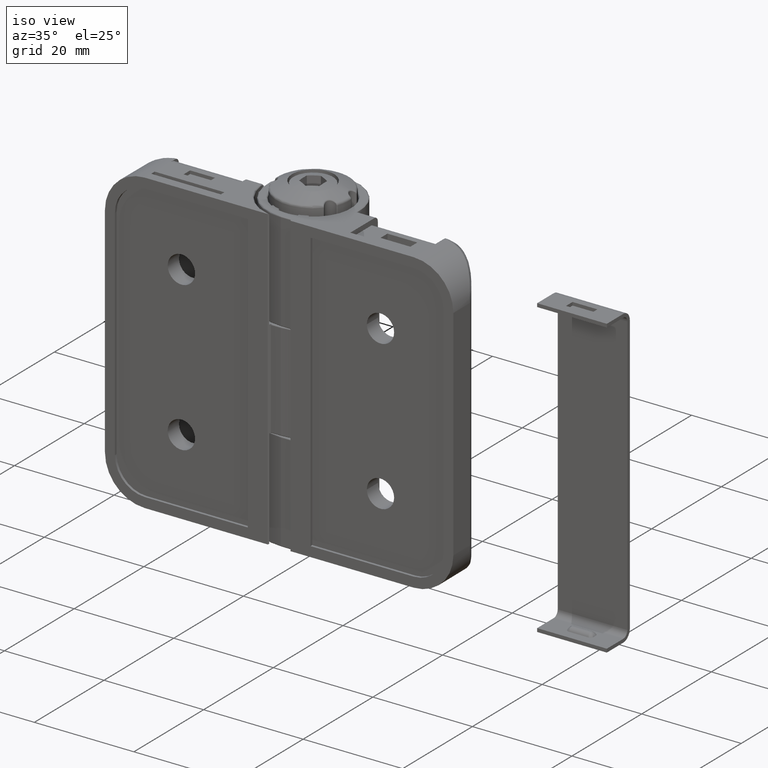
[diagram: clean part render]
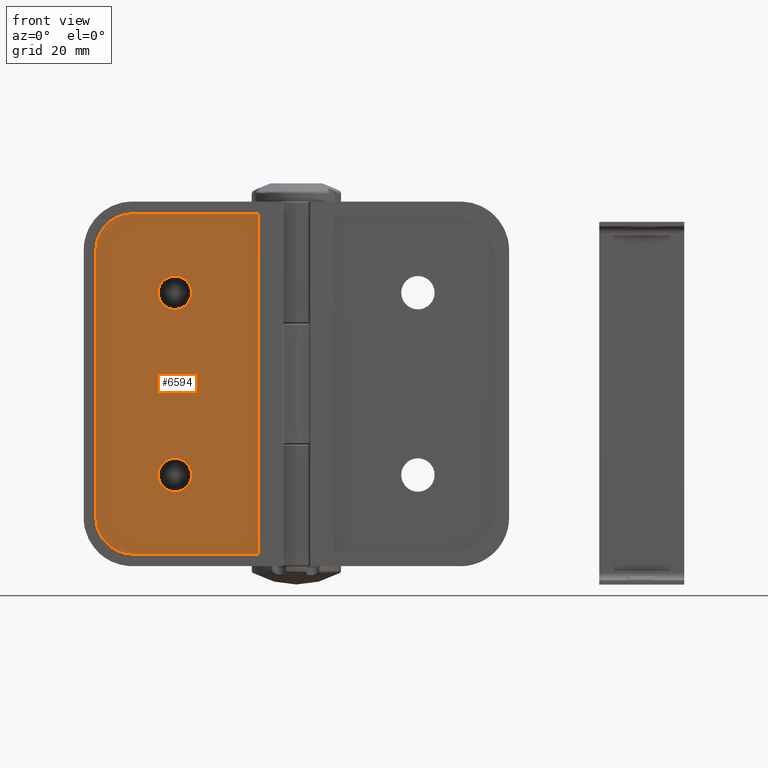
[diagram: tour spotlight — one face highlighted and labeled with its STEP entity id]
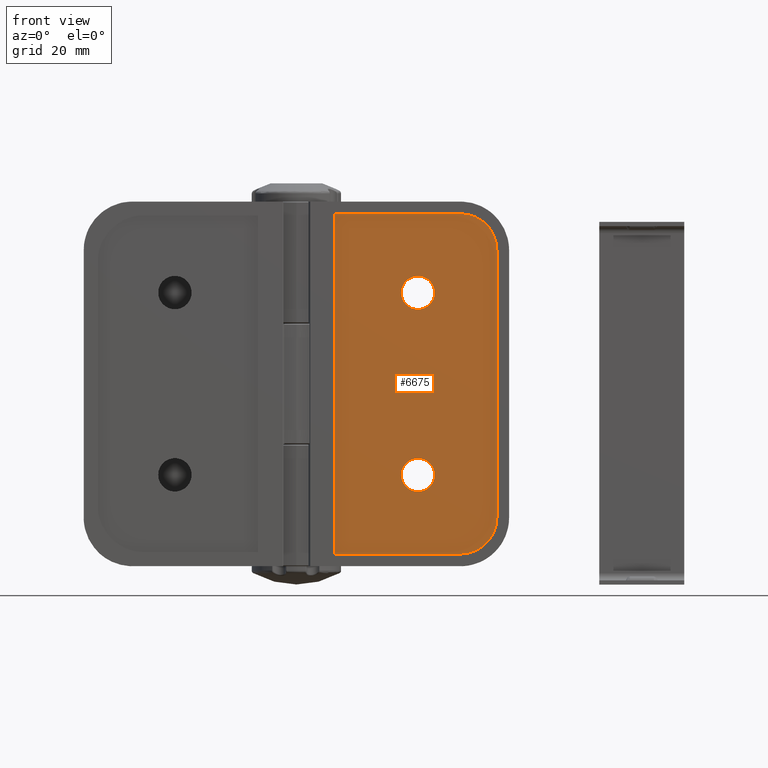
[diagram: tour spotlight — one face highlighted and labeled with its STEP entity id]
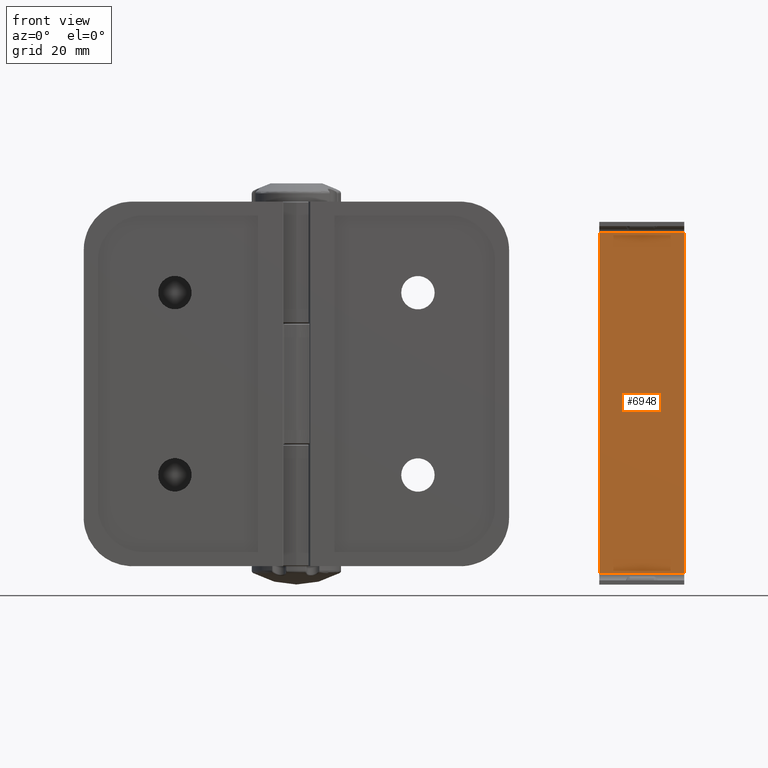
[diagram: tour spotlight — one face highlighted and labeled with its STEP entity id]
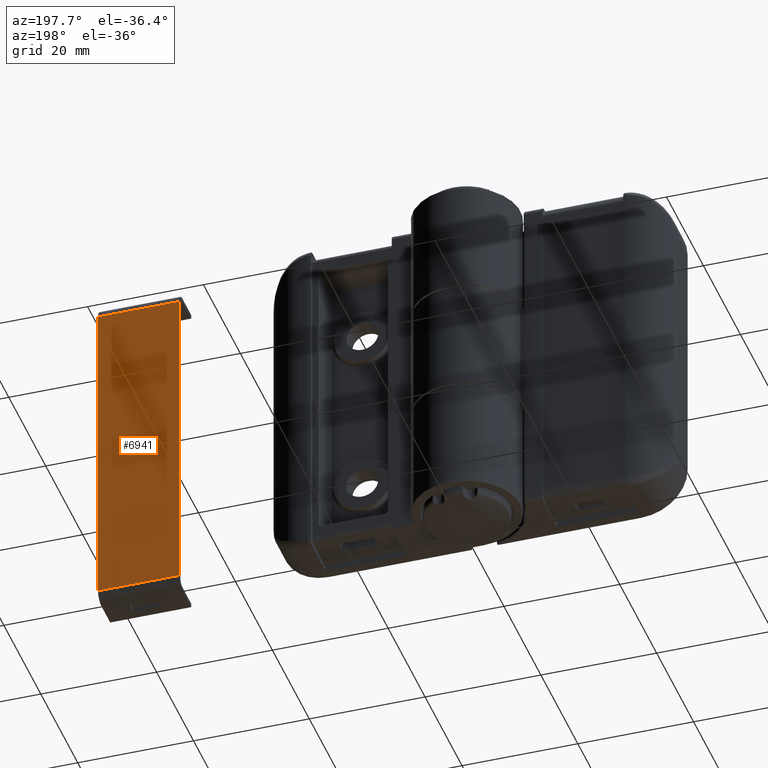
[diagram: tour spotlight — one face highlighted and labeled with its STEP entity id]
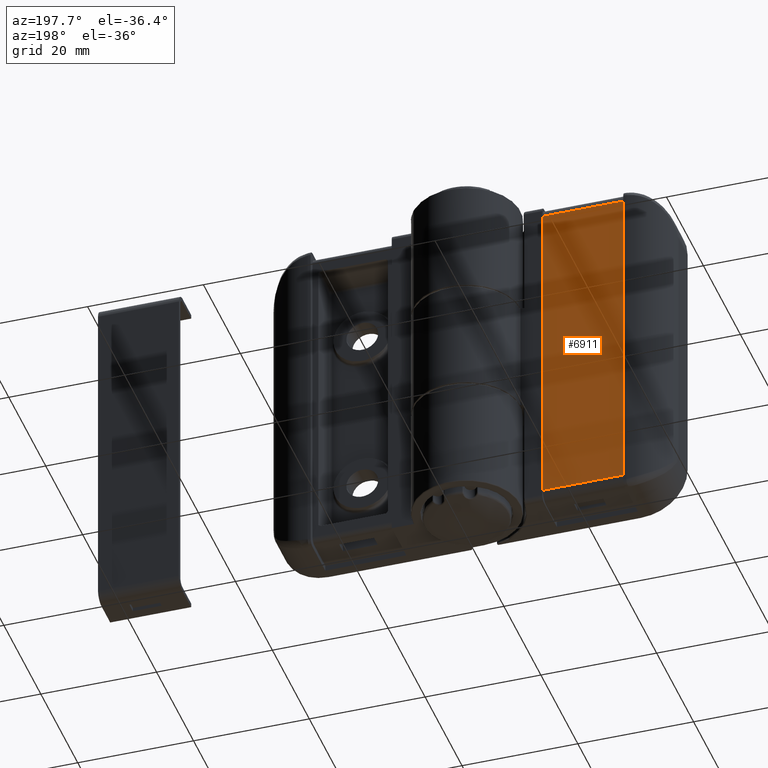
[diagram: tour spotlight — one face highlighted and labeled with its STEP entity id]
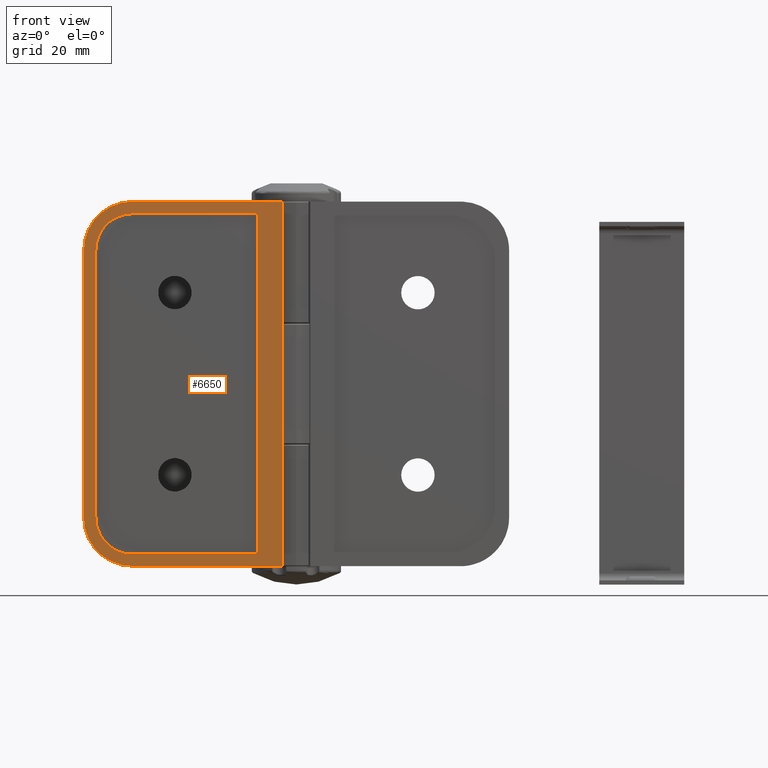
[diagram: tour spotlight — one face highlighted and labeled with its STEP entity id]
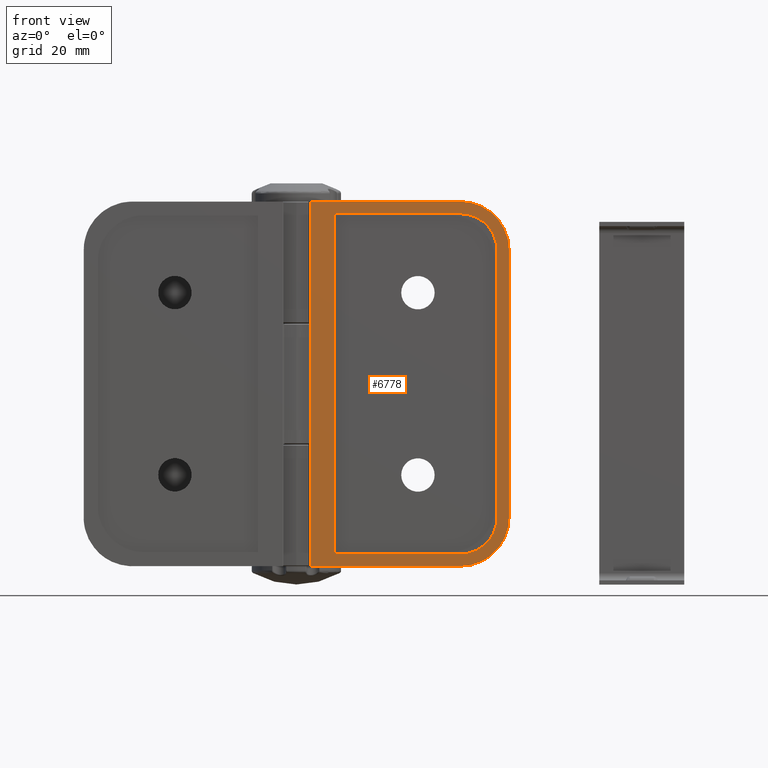
[diagram: tour spotlight — one face highlighted and labeled with its STEP entity id]
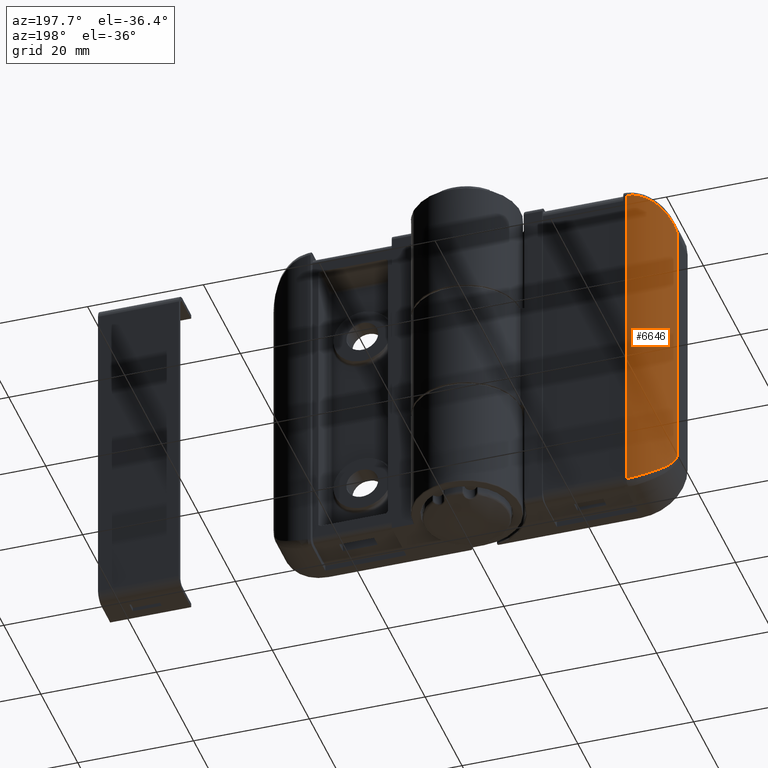
[diagram: tour spotlight — one face highlighted and labeled with its STEP entity id]
A machine part: a face-by-face anatomy tour. The part has 411 B-rep faces; the first image is the clean iso view, then the 8 largest visible faces are spotlighted one at a time (largest first), each with its STEP entity span.

Face 1 — front view, entity #6594. In plain terms, the highlighted planar face has unit normal (0, -1, 0).
Definition (entity closure, byte-faithful):
#369=FACE_BOUND('',#1961,.T.);
#370=FACE_BOUND('',#1962,.T.);
#428=PLANE('',#7033);
#579=LINE('',#9811,#995);
#580=LINE('',#9815,#996);
#581=LINE('',#9817,#997);
#582=LINE('',#9818,#998);
#995=VECTOR('',#7857,44.);
#996=VECTOR('',#7860,20.7);
#997=VECTOR('',#7861,56.);
#998=VECTOR('',#7862,20.7);
#1542=FACE_OUTER_BOUND('',#1960,.T.);
#1960=EDGE_LOOP('',(#4544,#4545,#4546,#4547,#4548,#4549));
#1961=EDGE_LOOP('',(#4550));
#1962=EDGE_LOOP('',(#4551));
#2432=CIRCLE('',#7034,6.);
#2433=CIRCLE('',#7035,6.);
#2434=CIRCLE('',#7036,2.75);
#2435=CIRCLE('',#7037,2.75);
#2831=VERTEX_POINT('',#9807);
#2832=VERTEX_POINT('',#9808);
#2833=VERTEX_POINT('',#9810);
#2834=VERTEX_POINT('',#9812);
#2835=VERTEX_POINT('',#9814);
#2836=VERTEX_POINT('',#9816);
#2837=VERTEX_POINT('',#9819);
#2838=VERTEX_POINT('',#9821);
#3506=EDGE_CURVE('',#2831,#2832,#2432,.T.);
#3507=EDGE_CURVE('',#2832,#2833,#579,.T.);
#3508=EDGE_CURVE('',#2833,#2834,#2433,.T.);
#3509=EDGE_CURVE('',#2834,#2835,#580,.T.);
#3510=EDGE_CURVE('',#2835,#2836,#581,.T.);
#3511=EDGE_CURVE('',#2836,#2831,#582,.T.);
#3512=EDGE_CURVE('',#2837,#2837,#2434,.T.);
#3513=EDGE_CURVE('',#2838,#2838,#2435,.T.);
#4544=ORIENTED_EDGE('',*,*,#3506,.T.);
#4545=ORIENTED_EDGE('',*,*,#3507,.T.);
#4546=ORIENTED_EDGE('',*,*,#3508,.T.);
#4547=ORIENTED_EDGE('',*,*,#3509,.T.);
#4548=ORIENTED_EDGE('',*,*,#3510,.T.);
#4549=ORIENTED_EDGE('',*,*,#3511,.T.);
#4550=ORIENTED_EDGE('',*,*,#3512,.F.);
#4551=ORIENTED_EDGE('',*,*,#3513,.T.);
#6594=ADVANCED_FACE('',(#1542,#369,#370),#428,.T.);
#7033=AXIS2_PLACEMENT_3D('',#9806,#7853,#7854);
#7034=AXIS2_PLACEMENT_3D('',#9809,#7855,#7856);
#7035=AXIS2_PLACEMENT_3D('',#9813,#7858,#7859);
#7036=AXIS2_PLACEMENT_3D('',#9820,#7863,#7864);
#7037=AXIS2_PLACEMENT_3D('',#9822,#7865,#7866);
#7853=DIRECTION('center_axis',(0.,-1.,0.));
#7854=DIRECTION('ref_axis',(-1.,0.,0.));
#7855=DIRECTION('center_axis',(0.,-1.,0.));
#7856=DIRECTION('ref_axis',(0.,0.,-1.));
#7857=DIRECTION('',(0.,0.,1.));
#7858=DIRECTION('center_axis',(0.,-1.,0.));
#7859=DIRECTION('ref_axis',(1.,0.,0.));
#7860=DIRECTION('',(-1.,0.,0.));
#7861=DIRECTION('',(0.,0.,-1.));
#7862=DIRECTION('',(1.,0.,0.));
#7863=DIRECTION('center_axis',(0.,-1.,0.));
#7864=DIRECTION('ref_axis',(1.,0.,0.));
#7865=DIRECTION('center_axis',(0.,1.,0.));
#7866=DIRECTION('ref_axis',(1.,0.,0.));
#9806=CARTESIAN_POINT('Origin',(0.,-9.25,0.));
#9807=CARTESIAN_POINT('',(27.,-9.25,2.));
#9808=CARTESIAN_POINT('',(33.,-9.25,8.));
#9809=CARTESIAN_POINT('Origin',(27.,-9.25,8.));
#9810=CARTESIAN_POINT('',(33.,-9.25,52.));
#9811=CARTESIAN_POINT('',(33.,-9.25,8.));
#9812=CARTESIAN_POINT('',(27.,-9.25,58.));
#9813=CARTESIAN_POINT('Origin',(27.,-9.25,52.));
#9814=CARTESIAN_POINT('',(6.3,-9.25,58.));
#9815=CARTESIAN_POINT('',(27.,-9.25,58.));
#9816=CARTESIAN_POINT('',(6.3,-9.25,2.));
#9817=CARTESIAN_POINT('',(6.3,-9.25,58.));
#9818=CARTESIAN_POINT('',(6.3,-9.25,2.));
#9819=CARTESIAN_POINT('',(17.25,-9.25,45.));
#9820=CARTESIAN_POINT('Origin',(20.,-9.25,45.));
#9821=CARTESIAN_POINT('',(17.25,-9.25,15.));
#9822=CARTESIAN_POINT('Origin',(20.,-9.25,15.));

Face 2 — front view, entity #6675. In plain terms, the highlighted planar face has unit normal (0, -1, -0).
Definition (entity closure, byte-faithful):
#385=FACE_BOUND('',#2058,.T.);
#386=FACE_BOUND('',#2059,.T.);
#467=PLANE('',#7171);
#683=LINE('',#10512,#1099);
#684=LINE('',#10516,#1100);
#685=LINE('',#10518,#1101);
#686=LINE('',#10519,#1102);
#1099=VECTOR('',#8237,44.);
#1100=VECTOR('',#8240,20.7);
#1101=VECTOR('',#8241,56.);
#1102=VECTOR('',#8242,20.7);
#1623=FACE_OUTER_BOUND('',#2057,.T.);
#2057=EDGE_LOOP('',(#4908,#4909,#4910,#4911,#4912,#4913));
#2058=EDGE_LOOP('',(#4914));
#2059=EDGE_LOOP('',(#4915));
#2492=CIRCLE('',#7172,6.);
#2493=CIRCLE('',#7173,6.);
#2494=CIRCLE('',#7174,2.75);
#2495=CIRCLE('',#7175,2.75);
#2939=VERTEX_POINT('',#10508);
#2940=VERTEX_POINT('',#10509);
#2941=VERTEX_POINT('',#10511);
#2942=VERTEX_POINT('',#10513);
#2943=VERTEX_POINT('',#10515);
#2944=VERTEX_POINT('',#10517);
#2945=VERTEX_POINT('',#10520);
#2946=VERTEX_POINT('',#10522);
#3680=EDGE_CURVE('',#2939,#2940,#2492,.T.);
#3681=EDGE_CURVE('',#2940,#2941,#683,.T.);
#3682=EDGE_CURVE('',#2941,#2942,#2493,.T.);
#3683=EDGE_CURVE('',#2942,#2943,#684,.T.);
#3684=EDGE_CURVE('',#2943,#2944,#685,.T.);
#3685=EDGE_CURVE('',#2944,#2939,#686,.T.);
#3686=EDGE_CURVE('',#2945,#2945,#2494,.T.);
#3687=EDGE_CURVE('',#2946,#2946,#2495,.T.);
#4908=ORIENTED_EDGE('',*,*,#3680,.T.);
#4909=ORIENTED_EDGE('',*,*,#3681,.T.);
#4910=ORIENTED_EDGE('',*,*,#3682,.T.);
#4911=ORIENTED_EDGE('',*,*,#3683,.T.);
#4912=ORIENTED_EDGE('',*,*,#3684,.T.);
#4913=ORIENTED_EDGE('',*,*,#3685,.T.);
#4914=ORIENTED_EDGE('',*,*,#3686,.F.);
#4915=ORIENTED_EDGE('',*,*,#3687,.T.);
#6675=ADVANCED_FACE('',(#1623,#385,#386),#467,.T.);
#7171=AXIS2_PLACEMENT_3D('',#10507,#8233,#8234);
#7172=AXIS2_PLACEMENT_3D('',#10510,#8235,#8236);
#7173=AXIS2_PLACEMENT_3D('',#10514,#8238,#8239);
#7174=AXIS2_PLACEMENT_3D('',#10521,#8243,#8244);
#7175=AXIS2_PLACEMENT_3D('',#10523,#8245,#8246);
#8233=DIRECTION('center_axis',(0.,-1.,0.));
#8234=DIRECTION('ref_axis',(-1.,0.,0.));
#8235=DIRECTION('center_axis',(0.,-1.,0.));
#8236=DIRECTION('ref_axis',(0.,0.,-1.));
#8237=DIRECTION('',(0.,0.,1.));
#8238=DIRECTION('center_axis',(0.,-1.,0.));
#8239=DIRECTION('ref_axis',(1.,0.,0.));
#8240=DIRECTION('',(-1.,0.,0.));
#8241=DIRECTION('',(0.,0.,-1.));
#8242=DIRECTION('',(1.,0.,0.));
#8243=DIRECTION('center_axis',(0.,-1.,0.));
#8244=DIRECTION('ref_axis',(1.,0.,0.));
#8245=DIRECTION('center_axis',(0.,1.,0.));
#8246=DIRECTION('ref_axis',(1.,0.,0.));
#10507=CARTESIAN_POINT('Origin',(0.,-9.25,0.));
#10508=CARTESIAN_POINT('',(27.,-9.25,2.));
#10509=CARTESIAN_POINT('',(33.,-9.25,8.));
#10510=CARTESIAN_POINT('Origin',(27.,-9.25,8.));
#10511=CARTESIAN_POINT('',(33.,-9.25,52.));
#10512=CARTESIAN_POINT('',(33.,-9.25,8.));
#10513=CARTESIAN_POINT('',(27.,-9.25,58.));
#10514=CARTESIAN_POINT('Origin',(27.,-9.25,52.));
#10515=CARTESIAN_POINT('',(6.3,-9.25,58.));
#10516=CARTESIAN_POINT('',(27.,-9.25,58.));
#10517=CARTESIAN_POINT('',(6.3,-9.25,2.));
#10518=CARTESIAN_POINT('',(6.3,-9.25,58.));
#10519=CARTESIAN_POINT('',(6.3,-9.25,2.));
#10520=CARTESIAN_POINT('',(17.25,-9.25,45.));
#10521=CARTESIAN_POINT('Origin',(20.,-9.25,45.));
#10522=CARTESIAN_POINT('',(17.25,-9.25,15.));
#10523=CARTESIAN_POINT('Origin',(20.,-9.25,15.));

Face 3 — front view, entity #6948. In plain terms, the highlighted planar face has unit normal (-0, 1, -0).
Definition (entity closure, byte-faithful):
#540=PLANE('',#7677);
#922=LINE('',#22172,#1338);
#924=LINE('',#22181,#1340);
#952=LINE('',#22478,#1368);
#953=LINE('',#22480,#1369);
#1338=VECTOR('',#9452,56.);
#1340=VECTOR('',#9460,56.);
#1368=VECTOR('',#9514,14.);
#1369=VECTOR('',#9517,14.);
#1896=FACE_OUTER_BOUND('',#2361,.T.);
#2361=EDGE_LOOP('',(#6222,#6223,#6224,#6225));
#3335=VERTEX_POINT('',#22169);
#3336=VERTEX_POINT('',#22171);
#3339=VERTEX_POINT('',#22178);
#3340=VERTEX_POINT('',#22180);
#4307=EDGE_CURVE('',#3335,#3336,#922,.T.);
#4311=EDGE_CURVE('',#3340,#3339,#924,.T.);
#4348=EDGE_CURVE('',#3336,#3339,#952,.T.);
#4349=EDGE_CURVE('',#3335,#3340,#953,.T.);
#6222=ORIENTED_EDGE('',*,*,#4307,.F.);
#6223=ORIENTED_EDGE('',*,*,#4349,.T.);
#6224=ORIENTED_EDGE('',*,*,#4311,.T.);
#6225=ORIENTED_EDGE('',*,*,#4348,.F.);
#6948=ADVANCED_FACE('',(#1896),#540,.F.);
#7677=AXIS2_PLACEMENT_3D('',#22479,#9515,#9516);
#9452=DIRECTION('',(0.,-1.,0.));
#9460=DIRECTION('',(0.,-1.,0.));
#9514=DIRECTION('',(0.,0.,-1.));
#9515=DIRECTION('center_axis',(1.,0.,0.));
#9516=DIRECTION('ref_axis',(0.,-1.,0.));
#9517=DIRECTION('',(0.,0.,-1.));
#22169=CARTESIAN_POINT('',(2.6,28.,0.5));
#22171=CARTESIAN_POINT('',(2.6,-28.,0.5));
#22172=CARTESIAN_POINT('',(2.6,14.,0.5));
#22178=CARTESIAN_POINT('',(2.6,-28.,-13.5));
#22180=CARTESIAN_POINT('',(2.6,28.,-13.5));
#22181=CARTESIAN_POINT('',(2.6,14.,-13.5));
#22478=CARTESIAN_POINT('',(2.6,-28.,0.));
#22479=CARTESIAN_POINT('Origin',(2.6,28.,0.));
#22480=CARTESIAN_POINT('',(2.6,28.,0.));

Face 4 — auxiliary view, entity #6941. In plain terms, the highlighted planar face has unit normal (0, -1, 0).
Definition (entity closure, byte-faithful):
#536=PLANE('',#7670);
#918=LINE('',#22160,#1334);
#928=LINE('',#22193,#1344);
#940=LINE('',#22455,#1356);
#941=LINE('',#22457,#1357);
#1334=VECTOR('',#9444,56.);
#1344=VECTOR('',#9468,56.);
#1356=VECTOR('',#9488,14.);
#1357=VECTOR('',#9491,14.);
#1889=FACE_OUTER_BOUND('',#2352,.T.);
#2352=EDGE_LOOP('',(#6182,#6183,#6184,#6185));
#3329=VERTEX_POINT('',#22157);
#3330=VERTEX_POINT('',#22159);
#3345=VERTEX_POINT('',#22190);
#3346=VERTEX_POINT('',#22192);
#4301=EDGE_CURVE('',#3329,#3330,#918,.T.);
#4317=EDGE_CURVE('',#3346,#3345,#928,.T.);
#4336=EDGE_CURVE('',#3330,#3345,#940,.T.);
#4337=EDGE_CURVE('',#3329,#3346,#941,.T.);
#6182=ORIENTED_EDGE('',*,*,#4301,.F.);
#6183=ORIENTED_EDGE('',*,*,#4337,.T.);
#6184=ORIENTED_EDGE('',*,*,#4317,.T.);
#6185=ORIENTED_EDGE('',*,*,#4336,.F.);
#6941=ADVANCED_FACE('',(#1889),#536,.F.);
#7670=AXIS2_PLACEMENT_3D('',#22456,#9489,#9490);
#9444=DIRECTION('',(0.,1.,0.));
#9468=DIRECTION('',(0.,1.,0.));
#9488=DIRECTION('',(0.,0.,-1.));
#9489=DIRECTION('center_axis',(-1.,0.,0.));
#9490=DIRECTION('ref_axis',(0.,1.,0.));
#9491=DIRECTION('',(0.,0.,-1.));
#22157=CARTESIAN_POINT('',(3.3,-28.,0.5));
#22159=CARTESIAN_POINT('',(3.3,28.,0.5));
#22160=CARTESIAN_POINT('',(3.3,-14.,0.5));
#22190=CARTESIAN_POINT('',(3.3,28.,-13.5));
#22192=CARTESIAN_POINT('',(3.3,-28.,-13.5));
#22193=CARTESIAN_POINT('',(3.3,-14.,-13.5));
#22455=CARTESIAN_POINT('',(3.3,28.,0.));
#22456=CARTESIAN_POINT('Origin',(3.3,-28.,0.));
#22457=CARTESIAN_POINT('',(3.3,-28.,0.));

Face 5 — auxiliary view, entity #6911. In plain terms, the highlighted planar face has unit normal (0, 1, -0).
Definition (entity closure, byte-faithful):
#516=PLANE('',#7635);
#860=LINE('',#21502,#1276);
#866=LINE('',#21519,#1282);
#880=LINE('',#21789,#1296);
#881=LINE('',#21791,#1297);
#1276=VECTOR('',#9320,56.);
#1282=VECTOR('',#9332,56.);
#1296=VECTOR('',#9358,14.);
#1297=VECTOR('',#9361,14.);
#1859=FACE_OUTER_BOUND('',#2318,.T.);
#2318=EDGE_LOOP('',(#6022,#6023,#6024,#6025));
#3277=VERTEX_POINT('',#21499);
#3278=VERTEX_POINT('',#21501);
#3285=VERTEX_POINT('',#21516);
#3286=VERTEX_POINT('',#21518);
#4225=EDGE_CURVE('',#3278,#3277,#860,.T.);
#4233=EDGE_CURVE('',#3285,#3286,#866,.T.);
#4256=EDGE_CURVE('',#3277,#3286,#880,.T.);
#4257=EDGE_CURVE('',#3278,#3285,#881,.T.);
#6022=ORIENTED_EDGE('',*,*,#4225,.T.);
#6023=ORIENTED_EDGE('',*,*,#4256,.T.);
#6024=ORIENTED_EDGE('',*,*,#4233,.F.);
#6025=ORIENTED_EDGE('',*,*,#4257,.F.);
#6911=ADVANCED_FACE('',(#1859),#516,.T.);
#7635=AXIS2_PLACEMENT_3D('',#21790,#9359,#9360);
#9320=DIRECTION('',(0.,1.,0.));
#9332=DIRECTION('',(0.,1.,0.));
#9358=DIRECTION('',(0.,0.,1.));
#9359=DIRECTION('center_axis',(1.,0.,0.));
#9360=DIRECTION('ref_axis',(0.,1.,0.));
#9361=DIRECTION('',(0.,0.,1.));
#21499=CARTESIAN_POINT('',(3.3,28.,-0.5));
#21501=CARTESIAN_POINT('',(3.3,-28.,-0.5));
#21502=CARTESIAN_POINT('',(3.3,-14.,-0.5));
#21516=CARTESIAN_POINT('',(3.3,-28.,13.5));
#21518=CARTESIAN_POINT('',(3.3,28.,13.5));
#21519=CARTESIAN_POINT('',(3.3,-14.,13.5));
#21789=CARTESIAN_POINT('',(3.3,28.,0.));
#21790=CARTESIAN_POINT('Origin',(3.3,-28.,0.));
#21791=CARTESIAN_POINT('',(3.3,-28.,0.));

Face 6 — front view, entity #6650. In plain terms, the highlighted planar face has unit normal (0, -1, 0).
Definition (entity closure, byte-faithful):
#380=FACE_BOUND('',#2028,.T.);
#446=PLANE('',#7141);
#608=LINE('',#9982,#1024);
#615=LINE('',#10006,#1031);
#618=LINE('',#10059,#1034);
#627=LINE('',#10359,#1043);
#657=LINE('',#10440,#1073);
#658=LINE('',#10442,#1074);
#659=LINE('',#10444,#1075);
#660=LINE('',#10447,#1076);
#1024=VECTOR('',#7998,60.);
#1031=VECTOR('',#8007,24.710844152953);
#1034=VECTOR('',#8028,24.710844152953);
#1043=VECTOR('',#8069,44.);
#1073=VECTOR('',#8151,20.7);
#1074=VECTOR('',#8152,56.);
#1075=VECTOR('',#8153,20.7);
#1076=VECTOR('',#8156,44.);
#1598=FACE_OUTER_BOUND('',#2027,.T.);
#2027=EDGE_LOOP('',(#4808,#4809,#4810,#4811,#4812,#4813));
#2028=EDGE_LOOP('',(#4814,#4815,#4816,#4817,#4818,#4819));
#2479=CIRCLE('',#7115,8.);
#2480=CIRCLE('',#7118,8.);
#2488=CIRCLE('',#7142,6.);
#2489=CIRCLE('',#7143,6.);
#2872=VERTEX_POINT('',#9979);
#2873=VERTEX_POINT('',#9981);
#2879=VERTEX_POINT('',#10004);
#2884=VERTEX_POINT('',#10058);
#2899=VERTEX_POINT('',#10352);
#2900=VERTEX_POINT('',#10357);
#2923=VERTEX_POINT('',#10436);
#2924=VERTEX_POINT('',#10437);
#2925=VERTEX_POINT('',#10439);
#2926=VERTEX_POINT('',#10441);
#2927=VERTEX_POINT('',#10443);
#2928=VERTEX_POINT('',#10445);
#3570=EDGE_CURVE('',#2872,#2873,#608,.T.);
#3578=EDGE_CURVE('',#2872,#2879,#615,.T.);
#3588=EDGE_CURVE('',#2873,#2884,#618,.T.);
#3609=EDGE_CURVE('',#2879,#2899,#2479,.T.);
#3612=EDGE_CURVE('',#2899,#2900,#627,.T.);
#3614=EDGE_CURVE('',#2900,#2884,#2480,.T.);
#3650=EDGE_CURVE('',#2923,#2924,#2488,.T.);
#3651=EDGE_CURVE('',#2925,#2923,#657,.T.);
#3652=EDGE_CURVE('',#2926,#2925,#658,.T.);
#3653=EDGE_CURVE('',#2927,#2926,#659,.T.);
#3654=EDGE_CURVE('',#2928,#2927,#2489,.T.);
#3655=EDGE_CURVE('',#2924,#2928,#660,.T.);
#4808=ORIENTED_EDGE('',*,*,#3614,.T.);
#4809=ORIENTED_EDGE('',*,*,#3588,.F.);
#4810=ORIENTED_EDGE('',*,*,#3570,.F.);
#4811=ORIENTED_EDGE('',*,*,#3578,.T.);
#4812=ORIENTED_EDGE('',*,*,#3609,.T.);
#4813=ORIENTED_EDGE('',*,*,#3612,.T.);
#4814=ORIENTED_EDGE('',*,*,#3650,.F.);
#4815=ORIENTED_EDGE('',*,*,#3651,.F.);
#4816=ORIENTED_EDGE('',*,*,#3652,.F.);
#4817=ORIENTED_EDGE('',*,*,#3653,.F.);
#4818=ORIENTED_EDGE('',*,*,#3654,.F.);
#4819=ORIENTED_EDGE('',*,*,#3655,.F.);
#6650=ADVANCED_FACE('',(#1598,#380),#446,.T.);
#7115=AXIS2_PLACEMENT_3D('',#10354,#8063,#8064);
#7118=AXIS2_PLACEMENT_3D('',#10362,#8073,#8074);
#7141=AXIS2_PLACEMENT_3D('',#10435,#8147,#8148);
#7142=AXIS2_PLACEMENT_3D('',#10438,#8149,#8150);
#7143=AXIS2_PLACEMENT_3D('',#10446,#8154,#8155);
#7998=DIRECTION('',(0.,0.,1.));
#8007=DIRECTION('',(1.,0.,0.));
#8028=DIRECTION('',(1.,0.,0.));
#8063=DIRECTION('center_axis',(0.,-1.,0.));
#8064=DIRECTION('ref_axis',(0.,0.,1.));
#8069=DIRECTION('',(0.,0.,1.));
#8073=DIRECTION('center_axis',(0.,-1.,0.));
#8074=DIRECTION('ref_axis',(-1.,0.,0.));
#8147=DIRECTION('center_axis',(0.,-1.,0.));
#8148=DIRECTION('ref_axis',(1.,0.,0.));
#8149=DIRECTION('center_axis',(0.,-1.,0.));
#8150=DIRECTION('ref_axis',(0.,0.,-1.));
#8151=DIRECTION('',(1.,0.,0.));
#8152=DIRECTION('',(0.,0.,-1.));
#8153=DIRECTION('',(-1.,0.,0.));
#8154=DIRECTION('center_axis',(0.,-1.,0.));
#8155=DIRECTION('ref_axis',(1.,0.,0.));
#8156=DIRECTION('',(0.,0.,1.));
#9979=CARTESIAN_POINT('',(2.289155847047,-9.75,0.));
#9981=CARTESIAN_POINT('',(2.289155847047,-9.75,60.));
#9982=CARTESIAN_POINT('',(2.289155847047,-9.75,0.));
#10004=CARTESIAN_POINT('',(27.,-9.75,0.));
#10006=CARTESIAN_POINT('',(2.289155847047,-9.75,0.));
#10058=CARTESIAN_POINT('',(27.,-9.75,60.));
#10059=CARTESIAN_POINT('',(2.289155847047,-9.75,60.));
#10352=CARTESIAN_POINT('',(35.,-9.75,8.));
#10354=CARTESIAN_POINT('Origin',(27.,-9.75,8.));
#10357=CARTESIAN_POINT('',(35.,-9.75,52.));
#10359=CARTESIAN_POINT('',(35.,-9.75,0.));
#10362=CARTESIAN_POINT('Origin',(27.,-9.75,52.));
#10435=CARTESIAN_POINT('Origin',(2.289155847047,-9.75,0.));
#10436=CARTESIAN_POINT('',(27.,-9.75,2.));
#10437=CARTESIAN_POINT('',(33.,-9.75,8.));
#10438=CARTESIAN_POINT('Origin',(27.,-9.75,8.));
#10439=CARTESIAN_POINT('',(6.3,-9.75,2.));
#10440=CARTESIAN_POINT('',(6.3,-9.75,2.));
#10441=CARTESIAN_POINT('',(6.3,-9.75,58.));
#10442=CARTESIAN_POINT('',(6.3,-9.75,58.));
#10443=CARTESIAN_POINT('',(27.,-9.75,58.));
#10444=CARTESIAN_POINT('',(27.,-9.75,58.));
#10445=CARTESIAN_POINT('',(33.,-9.75,52.));
#10446=CARTESIAN_POINT('Origin',(27.,-9.75,52.));
#10447=CARTESIAN_POINT('',(33.,-9.75,8.));

Face 7 — front view, entity #6778. In plain terms, the highlighted planar face has unit normal (0, -1, -0).
Definition (entity closure, byte-faithful):
#400=FACE_BOUND('',#2176,.T.);
#500=PLANE('',#7388);
#720=LINE('',#10815,#1136);
#729=LINE('',#10997,#1145);
#749=LINE('',#11368,#1165);
#807=LINE('',#11523,#1223);
#808=LINE('',#11525,#1224);
#809=LINE('',#11527,#1225);
#810=LINE('',#11529,#1226);
#811=LINE('',#11532,#1227);
#1136=VECTOR('',#8438,24.710844152953);
#1145=VECTOR('',#8515,24.710844152953);
#1165=VECTOR('',#8633,44.);
#1223=VECTOR('',#8793,60.);
#1224=VECTOR('',#8794,20.7);
#1225=VECTOR('',#8795,56.);
#1226=VECTOR('',#8796,20.7);
#1227=VECTOR('',#8799,44.);
#1726=FACE_OUTER_BOUND('',#2175,.T.);
#2175=EDGE_LOOP('',(#5392,#5393,#5394,#5395,#5396,#5397));
#2176=EDGE_LOOP('',(#5398,#5399,#5400,#5401,#5402,#5403));
#2590=CIRCLE('',#7336,8.);
#2591=CIRCLE('',#7339,8.);
#2603=CIRCLE('',#7387,6.);
#2604=CIRCLE('',#7389,6.);
#2997=VERTEX_POINT('',#10801);
#3003=VERTEX_POINT('',#10813);
#3029=VERTEX_POINT('',#10994);
#3030=VERTEX_POINT('',#10996);
#3068=VERTEX_POINT('',#11361);
#3069=VERTEX_POINT('',#11366);
#3106=VERTEX_POINT('',#11517);
#3107=VERTEX_POINT('',#11518);
#3108=VERTEX_POINT('',#11524);
#3109=VERTEX_POINT('',#11526);
#3110=VERTEX_POINT('',#11528);
#3111=VERTEX_POINT('',#11530);
#3774=EDGE_CURVE('',#2997,#3003,#720,.T.);
#3812=EDGE_CURVE('',#3029,#3030,#729,.T.);
#3867=EDGE_CURVE('',#3003,#3068,#2590,.T.);
#3870=EDGE_CURVE('',#3068,#3069,#749,.T.);
#3872=EDGE_CURVE('',#3069,#3030,#2591,.T.);
#3939=EDGE_CURVE('',#3106,#3107,#2603,.T.);
#3942=EDGE_CURVE('',#2997,#3029,#807,.T.);
#3943=EDGE_CURVE('',#3108,#3106,#808,.T.);
#3944=EDGE_CURVE('',#3109,#3108,#809,.T.);
#3945=EDGE_CURVE('',#3110,#3109,#810,.T.);
#3946=EDGE_CURVE('',#3111,#3110,#2604,.T.);
#3947=EDGE_CURVE('',#3107,#3111,#811,.T.);
#5392=ORIENTED_EDGE('',*,*,#3872,.T.);
#5393=ORIENTED_EDGE('',*,*,#3812,.F.);
#5394=ORIENTED_EDGE('',*,*,#3942,.F.);
#5395=ORIENTED_EDGE('',*,*,#3774,.T.);
#5396=ORIENTED_EDGE('',*,*,#3867,.T.);
#5397=ORIENTED_EDGE('',*,*,#3870,.T.);
#5398=ORIENTED_EDGE('',*,*,#3939,.F.);
#5399=ORIENTED_EDGE('',*,*,#3943,.F.);
#5400=ORIENTED_EDGE('',*,*,#3944,.F.);
#5401=ORIENTED_EDGE('',*,*,#3945,.F.);
#5402=ORIENTED_EDGE('',*,*,#3946,.F.);
#5403=ORIENTED_EDGE('',*,*,#3947,.F.);
#6778=ADVANCED_FACE('',(#1726,#400),#500,.T.);
#7336=AXIS2_PLACEMENT_3D('',#11363,#8627,#8628);
#7339=AXIS2_PLACEMENT_3D('',#11371,#8637,#8638);
#7387=AXIS2_PLACEMENT_3D('',#11519,#8787,#8788);
#7388=AXIS2_PLACEMENT_3D('',#11522,#8791,#8792);
#7389=AXIS2_PLACEMENT_3D('',#11531,#8797,#8798);
#8438=DIRECTION('',(1.,0.,0.));
#8515=DIRECTION('',(1.,0.,0.));
#8627=DIRECTION('center_axis',(0.,-1.,0.));
#8628=DIRECTION('ref_axis',(0.,0.,1.));
#8633=DIRECTION('',(0.,0.,1.));
#8637=DIRECTION('center_axis',(0.,-1.,0.));
#8638=DIRECTION('ref_axis',(-1.,0.,0.));
#8787=DIRECTION('center_axis',(0.,-1.,0.));
#8788=DIRECTION('ref_axis',(0.,0.,-1.));
#8791=DIRECTION('center_axis',(0.,-1.,0.));
#8792=DIRECTION('ref_axis',(1.,0.,0.));
#8793=DIRECTION('',(0.,0.,1.));
#8794=DIRECTION('',(1.,0.,0.));
#8795=DIRECTION('',(0.,0.,-1.));
#8796=DIRECTION('',(-1.,0.,0.));
#8797=DIRECTION('center_axis',(0.,-1.,0.));
#8798=DIRECTION('ref_axis',(1.,0.,0.));
#8799=DIRECTION('',(0.,0.,1.));
#10801=CARTESIAN_POINT('',(2.289155847047,-9.75,0.));
#10813=CARTESIAN_POINT('',(27.,-9.75,0.));
#10815=CARTESIAN_POINT('',(2.289155847047,-9.75,0.));
#10994=CARTESIAN_POINT('',(2.289155847047,-9.75,60.));
#10996=CARTESIAN_POINT('',(27.,-9.75,60.));
#10997=CARTESIAN_POINT('',(2.289155847047,-9.75,60.));
#11361=CARTESIAN_POINT('',(35.,-9.75,8.));
#11363=CARTESIAN_POINT('Origin',(27.,-9.75,8.));
#11366=CARTESIAN_POINT('',(35.,-9.75,52.));
#11368=CARTESIAN_POINT('',(35.,-9.75,0.));
#11371=CARTESIAN_POINT('Origin',(27.,-9.75,52.));
#11517=CARTESIAN_POINT('',(27.,-9.75,2.));
#11518=CARTESIAN_POINT('',(33.,-9.75,8.));
#11519=CARTESIAN_POINT('Origin',(27.,-9.75,8.));
#11522=CARTESIAN_POINT('Origin',(2.289155847047,-9.75,0.));
#11523=CARTESIAN_POINT('',(2.289155847047,-9.75,0.));
#11524=CARTESIAN_POINT('',(6.3,-9.75,2.));
#11525=CARTESIAN_POINT('',(6.3,-9.75,2.));
#11526=CARTESIAN_POINT('',(6.3,-9.75,58.));
#11527=CARTESIAN_POINT('',(6.3,-9.75,58.));
#11528=CARTESIAN_POINT('',(27.,-9.75,58.));
#11529=CARTESIAN_POINT('',(27.,-9.75,58.));
#11530=CARTESIAN_POINT('',(33.,-9.75,52.));
#11531=CARTESIAN_POINT('Origin',(27.,-9.75,52.));
#11532=CARTESIAN_POINT('',(33.,-9.75,8.));

Face 8 — auxiliary view, entity #6646. In plain terms, the highlighted cylindrical surface (partial cylindrical patch) has radius 8.2067 mm, axis along (0, 0, -1).
Definition (entity closure, byte-faithful):
#137=B_SPLINE_CURVE_WITH_KNOTS('',3,(#10122,#10123,#10124,#10125,#10126,
#10127,#10128,#10129,#10130,#10131,#10132,#10133,#10134,#10135,#10136,#10137,
#10138,#10139,#10140,#10141,#10142,#10143,#10144,#10145,#10146,#10147,#10148,
#10149,#10150,#10151,#10152,#10153,#10154,#10155,#10156,#10157,#10158,#10159,
#10160,#10161,#10162,#10163,#10164,#10165,#10166,#10167,#10168,#10169,#10170,
#10171,#10172,#10173,#10174,#10175,#10176,#10177,#10178,#10179,#10180,#10181,
#10182,#10183,#10184,#10185,#10186,#10187,#10188,#10189,#10190,#10191,#10192,
#10193,#10194,#10195,#10196,#10197,#10198,#10199,#10200,#10201,#10202,#10203,
#10204,#10205,#10206,#10207,#10208,#10209,#10210,#10211,#10212),
 .UNSPECIFIED.,.F.,.F.,(4,3,3,3,3,3,3,3,3,3,3,3,3,3,3,3,3,3,3,3,3,3,3,3,
3,3,3,3,3,3,4),(-1.14173111206282,-1.11330373129397,-1.08217876433006,-1.04451351395039,
-0.999041757056984,-0.978626667482416,-0.93726834694707,-0.899029842358226,
-0.862620490617998,-0.827804407223391,-0.815522222902013,-0.761636320577675,
-0.708717568412238,-0.656647020095335,-0.605615523554023,-0.555115523124617,
-0.505267275827859,-0.489313333741208,-0.437501361161214,-0.386362703177627,
-0.33613076755958,-0.326208889160806,-0.28035641520673,-0.234771887770221,
-0.18953184623371,-0.163104444580403,-0.122328333435302,-0.083141771677633,
-0.0440561393206215,-0.00506649378909395,-2.59440227042344E-16),
 .UNSPECIFIED.);
#139=B_SPLINE_CURVE_WITH_KNOTS('',3,(#10276,#10277,#10278,#10279,#10280,
#10281,#10282,#10283,#10284,#10285,#10286,#10287,#10288,#10289,#10290,#10291,
#10292,#10293,#10294,#10295,#10296,#10297,#10298,#10299,#10300,#10301,#10302,
#10303,#10304,#10305,#10306,#10307,#10308,#10309,#10310,#10311,#10312,#10313,
#10314,#10315,#10316,#10317,#10318,#10319,#10320,#10321,#10322,#10323,#10324,
#10325,#10326,#10327,#10328,#10329,#10330,#10331,#10332,#10333,#10334,#10335),
 .UNSPECIFIED.,.F.,.F.,(4,2,2,2,2,2,2,2,2,2,2,2,2,2,2,2,2,2,2,2,2,2,2,2,
2,2,2,2,2,4),(-1.14174286005062,-1.10096632933453,-1.06147403862083,-1.02005538790354,
-0.978636737186243,-0.934594413704287,-0.890348952044073,-0.845713922942886,
-0.815530614321869,-0.765150547480629,-0.714067955860167,-0.662258143447152,
-0.609326565137182,-0.555717047480582,-0.5011118625327,-0.489318368593121,
-0.445993473931161,-0.401904593271988,-0.356226448012159,-0.309345995547383,
-0.260088602897673,-0.244659184296561,-0.211760473365531,-0.175887525017774,
-0.163106122864374,-0.115452881136542,-0.0772739099208151,-0.0446435519013156,
-0.0159099152355453,0.),.UNSPECIFIED.);
#622=LINE('',#10226,#1038);
#645=LINE('',#10413,#1061);
#1038=VECTOR('',#8048,44.);
#1061=VECTOR('',#8127,57.964240043769);
#1430=CYLINDRICAL_SURFACE('',#7137,8.20673076923076);
#1594=FACE_OUTER_BOUND('',#2022,.T.);
#2022=EDGE_LOOP('',(#4772,#4773,#4774,#4775));
#2890=VERTEX_POINT('',#10071);
#2892=VERTEX_POINT('',#10120);
#2894=VERTEX_POINT('',#10224);
#2896=VERTEX_POINT('',#10274);
#3597=EDGE_CURVE('',#2892,#2890,#137,.T.);
#3600=EDGE_CURVE('',#2894,#2892,#622,.T.);
#3603=EDGE_CURVE('',#2896,#2894,#139,.T.);
#3638=EDGE_CURVE('',#2890,#2896,#645,.T.);
#4772=ORIENTED_EDGE('',*,*,#3603,.F.);
#4773=ORIENTED_EDGE('',*,*,#3638,.F.);
#4774=ORIENTED_EDGE('',*,*,#3597,.F.);
#4775=ORIENTED_EDGE('',*,*,#3600,.F.);
#6646=ADVANCED_FACE('',(#1594),#1430,.T.);
#7137=AXIS2_PLACEMENT_3D('',#10414,#8128,#8129);
#8048=DIRECTION('',(0.,0.,1.));
#8127=DIRECTION('',(0.,0.,-1.));
#8128=DIRECTION('center_axis',(0.,0.,1.));
#8129=DIRECTION('ref_axis',(0.,-1.,0.));
#10071=CARTESIAN_POINT('',(27.5,0.,58.9821200218845));
#10120=CARTESIAN_POINT('',(34.9019346230821,-4.66246868040917,52.));
#10122=CARTESIAN_POINT('Ctrl Pts',(34.9019346230821,-4.6624686804092,52.));
#10123=CARTESIAN_POINT('Ctrl Pts',(34.9019346230821,-4.6624686804092,52.0947579358961));
#10124=CARTESIAN_POINT('Ctrl Pts',(34.8995685888247,-4.65751616650692,52.1891969755497));
#10125=CARTESIAN_POINT('Ctrl Pts',(34.8950273371373,-4.64807925473388,52.2831533346703));
#10126=CARTESIAN_POINT('Ctrl Pts',(34.8900551481799,-4.6377468372113,52.3860255829951));
#10127=CARTESIAN_POINT('Ctrl Pts',(34.8824745918179,-4.62203879232327,52.4883192754406));
#10128=CARTESIAN_POINT('Ctrl Pts',(34.8724789438264,-4.60159774235425,52.5898195033345));
#10129=CARTESIAN_POINT('Ctrl Pts',(34.8603829122147,-4.57686141842499,52.7126479549003));
#10130=CARTESIAN_POINT('Ctrl Pts',(34.8447489428386,-4.54519416321168,52.8343144123669));
#10131=CARTESIAN_POINT('Ctrl Pts',(34.8258538712367,-4.50777213524678,52.9544376487057));
#10132=CARTESIAN_POINT('Ctrl Pts',(34.8030426037235,-4.46259401108923,53.0994576484399));
#10133=CARTESIAN_POINT('Ctrl Pts',(34.7754723658207,-4.40903028814893,53.2422284123717));
#10134=CARTESIAN_POINT('Ctrl Pts',(34.7436020596133,-4.3491850312511,53.3820794727126));
#10135=CARTESIAN_POINT('Ctrl Pts',(34.7292935041396,-4.32231678679232,53.4448672803324));
#10136=CARTESIAN_POINT('Ctrl Pts',(34.7141185069485,-4.29418260057364,53.5070665776992));
#10137=CARTESIAN_POINT('Ctrl Pts',(34.6981228402033,-4.26497259603157,53.5686166955253));
#10138=CARTESIAN_POINT('Ctrl Pts',(34.6657176964488,-4.20579691981045,53.6933092418275));
#10139=CARTESIAN_POINT('Ctrl Pts',(34.6299465452657,-4.14221189437787,53.8153373388922));
#10140=CARTESIAN_POINT('Ctrl Pts',(34.5908807179053,-4.07516441213602,53.9349805291));
#10141=CARTESIAN_POINT('Ctrl Pts',(34.5547617749829,-4.01317457734124,54.0455985768971));
#10142=CARTESIAN_POINT('Ctrl Pts',(34.5158257069499,-3.94822566172041,54.1541779499559));
#10143=CARTESIAN_POINT('Ctrl Pts',(34.474168482527,-3.88106274036327,54.2609393959179));
#10144=CARTESIAN_POINT('Ctrl Pts',(34.434503946666,-3.81711258190684,54.3625938690759));
#10145=CARTESIAN_POINT('Ctrl Pts',(34.3923720142235,-3.75115569212552,54.4626001558572));
#10146=CARTESIAN_POINT('Ctrl Pts',(34.3479004512693,-3.68382359263018,54.5611488738286));
#10147=CARTESIAN_POINT('Ctrl Pts',(34.3053749579413,-3.61943793677205,54.6553851131278));
#10148=CARTESIAN_POINT('Ctrl Pts',(34.2607100468184,-3.55379514847514,54.7482885658281));
#10149=CARTESIAN_POINT('Ctrl Pts',(34.2140623072846,-3.48743026464975,54.8400260882832));
#10150=CARTESIAN_POINT('Ctrl Pts',(34.1976062306882,-3.464018506171,54.8723886359945));
#10151=CARTESIAN_POINT('Ctrl Pts',(34.1809038183577,-3.44051669872593,54.9046060856946));
#10152=CARTESIAN_POINT('Ctrl Pts',(34.163963374446,-3.41694767782868,54.9366857587413));
#10153=CARTESIAN_POINT('Ctrl Pts',(34.0896401855024,-3.31354278463401,55.0774296267017));
#10154=CARTESIAN_POINT('Ctrl Pts',(34.0107784182984,-3.20890405984774,55.2155206079129));
#10155=CARTESIAN_POINT('Ctrl Pts',(33.9271728339755,-3.10360630662492,55.350896232404));
#10156=CARTESIAN_POINT('Ctrl Pts',(33.8450678119644,-3.00019844917017,55.4838421201533));
#10157=CARTESIAN_POINT('Ctrl Pts',(33.7583873488854,-2.89615531090216,55.614169326307));
#10158=CARTESIAN_POINT('Ctrl Pts',(33.6669790726782,-2.79204711865726,55.7418189372666));
#10159=CARTESIAN_POINT('Ctrl Pts',(33.5770359264768,-2.68960761597349,55.8674225269794));
#10160=CARTESIAN_POINT('Ctrl Pts',(33.4825150065847,-2.58710546966753,55.9904336654869));
#10161=CARTESIAN_POINT('Ctrl Pts',(33.3833172885207,-2.48510446185695,56.1107960369235));
#10162=CARTESIAN_POINT('Ctrl Pts',(33.2860990304091,-2.38513885278333,56.2287566142597));
#10163=CARTESIAN_POINT('Ctrl Pts',(33.1843885943294,-2.28565497215988,56.3441730701794));
#10164=CARTESIAN_POINT('Ctrl Pts',(33.0781408200651,-2.18719798751404,56.456992346501));
#10165=CARTESIAN_POINT('Ctrl Pts',(32.9729996227728,-2.08976643829682,56.5686366032607));
#10166=CARTESIAN_POINT('Ctrl Pts',(32.8634149473071,-1.99334089502866,56.6777374993018));
#10167=CARTESIAN_POINT('Ctrl Pts',(32.7493930692695,-1.89845823842298,56.784243640679));
#10168=CARTESIAN_POINT('Ctrl Pts',(32.6368427578768,-1.80480013762226,56.8893752135275));
#10169=CARTESIAN_POINT('Ctrl Pts',(32.5199689621396,-1.71264574584794,56.9919785816748));
#10170=CARTESIAN_POINT('Ctrl Pts',(32.3988284292594,-1.62251403986055,57.0920042716916));
#10171=CARTESIAN_POINT('Ctrl Pts',(32.3600573760986,-1.59366736830291,57.1240175149297));
#10172=CARTESIAN_POINT('Ctrl Pts',(32.3208496689339,-1.56502788086293,57.1557667203679));
#10173=CARTESIAN_POINT('Ctrl Pts',(32.2812083017188,-1.53661254732389,57.1872502640141));
#10174=CARTESIAN_POINT('Ctrl Pts',(32.1524691211435,-1.44433099871479,57.2894961222012));
#10175=CARTESIAN_POINT('Ctrl Pts',(32.0190664230787,-1.35434864520717,57.3889400120328));
#10176=CARTESIAN_POINT('Ctrl Pts',(31.8809671526828,-1.26716617728747,57.4851698599416));
#10177=CARTESIAN_POINT('Ctrl Pts',(31.7446625303167,-1.18111667584787,57.580149167522));
#10178=CARTESIAN_POINT('Ctrl Pts',(31.6037823297987,-1.0977949510789,57.6719974300712));
#10179=CARTESIAN_POINT('Ctrl Pts',(31.4583363284554,-1.01771112608961,57.7603184174418));
#10180=CARTESIAN_POINT('Ctrl Pts',(31.3154691813018,-0.939047240498405,
57.8470734150553));
#10181=CARTESIAN_POINT('Ctrl Pts',(31.1681964845291,-0.863507687797648,
57.9304251087557));
#10182=CARTESIAN_POINT('Ctrl Pts',(31.0165715134777,-0.791600648374052,
58.0099979454697));
#10183=CARTESIAN_POINT('Ctrl Pts',(30.9866223485394,-0.777397474787398,
58.0257152774818));
#10184=CARTESIAN_POINT('Ctrl Pts',(30.9565035268628,-0.763336094475545,
58.0412851786022));
#10185=CARTESIAN_POINT('Ctrl Pts',(30.9262156787119,-0.749420527488911,
58.0567047547452));
#10186=CARTESIAN_POINT('Ctrl Pts',(30.786244927948,-0.685111820289911,58.1279640148432));
#10187=CARTESIAN_POINT('Ctrl Pts',(30.6426650951011,-0.623920901021486,
58.1960128019168));
#10188=CARTESIAN_POINT('Ctrl Pts',(30.4956989621743,-0.566297689446172,
58.260541018203));
#10189=CARTESIAN_POINT('Ctrl Pts',(30.34959165016,-0.509011208641113,58.3246921531816));
#10190=CARTESIAN_POINT('Ctrl Pts',(30.2001376067988,-0.455251234605164,
58.3853637334573));
#10191=CARTESIAN_POINT('Ctrl Pts',(30.0476026569679,-0.405439169703844,
58.4422510170187));
#10192=CARTESIAN_POINT('Ctrl Pts',(29.8962204258866,-0.356003538539437,
58.4987083988529));
#10193=CARTESIAN_POINT('Ctrl Pts',(29.7418038401126,-0.310456714567653,
58.5514384662138));
#10194=CARTESIAN_POINT('Ctrl Pts',(29.5846570307928,-0.269184864947426,
58.6001433665959));
#10195=CARTESIAN_POINT('Ctrl Pts',(29.4928582236436,-0.245075520441003,
58.6285947985832));
#10196=CARTESIAN_POINT('Ctrl Pts',(29.4001285674979,-0.222424468579926,
58.6556726745736));
#10197=CARTESIAN_POINT('Ctrl Pts',(29.3065354178016,-0.201303878498003,
58.6813176022085));
#10198=CARTESIAN_POINT('Ctrl Pts',(29.162126038306,-0.168715902580861,58.720886396495));
#10199=CARTESIAN_POINT('Ctrl Pts',(29.0156382737073,-0.139770211571636,
58.7570437432722));
#10200=CARTESIAN_POINT('Ctrl Pts',(28.8674656971074,-0.114730553840665,
58.7896291393234));
#10201=CARTESIAN_POINT('Ctrl Pts',(28.7250692384785,-0.0906670012724972,
58.8209442794605));
#10202=CARTESIAN_POINT('Ctrl Pts',(28.5811172586548,-0.0702108215011085,
58.8489605396484));
#10203=CARTESIAN_POINT('Ctrl Pts',(28.435983293961,-0.053549476504291,58.8735354269406));
#10204=CARTESIAN_POINT('Ctrl Pts',(28.2912231381296,-0.0369310446769183,
58.8980470188445));
#10205=CARTESIAN_POINT('Ctrl Pts',(28.1452874688539,-0.0240880916544362,
58.9191349346304));
#10206=CARTESIAN_POINT('Ctrl Pts',(27.9985651357171,-0.0151581043460536,
58.9366577166409));
#10207=CARTESIAN_POINT('Ctrl Pts',(27.8522031245229,-0.00625004737579431,
58.9541374660555));
#10208=CARTESIAN_POINT('Ctrl Pts',(27.7050586807276,-0.00123586672556849,
58.9680695670623));
#10209=CARTESIAN_POINT('Ctrl Pts',(27.5575301433688,-0.000201648997111281,
58.9783136591791));
#10210=CARTESIAN_POINT('Ctrl Pts',(27.5383596069853,-6.7257990823183E-5,
58.9796448236044));
#10211=CARTESIAN_POINT('Ctrl Pts',(27.5191825976707,-2.34919068367535E-18,
58.9809137138395));
#10212=CARTESIAN_POINT('Ctrl Pts',(27.5,0.,58.9821200218845));
#10224=CARTESIAN_POINT('',(34.9019346230821,-4.66246868040917,8.));
#10226=CARTESIAN_POINT('',(34.9019346230821,-4.66246868040917,0.));
#10274=CARTESIAN_POINT('',(27.5,9.54097911787244E-17,1.01787997811553));
#10276=CARTESIAN_POINT('Ctrl Pts',(27.5,0.,1.01787997811553));
#10277=CARTESIAN_POINT('Ctrl Pts',(27.6543868039111,-1.89069305240289E-17,
1.02758867590508));
#10278=CARTESIAN_POINT('Ctrl Pts',(27.8083953082104,-0.00436147418522087,
1.0412944851392));
#10279=CARTESIAN_POINT('Ctrl Pts',(28.1099388185552,-0.0213483742026075,
1.07588831340774));
#10280=CARTESIAN_POINT('Ctrl Pts',(28.2575246009912,-0.0337087870836496,
1.09653653679345));
#10281=CARTESIAN_POINT('Ctrl Pts',(28.5575053846759,-0.0669529468931914,
1.14603262788332));
#10282=CARTESIAN_POINT('Ctrl Pts',(28.7097832244047,-0.0882232644847891,
1.17523133044929));
#10283=CARTESIAN_POINT('Ctrl Pts',(29.0109089336139,-0.138837999182715,
1.24108068156035));
#10284=CARTESIAN_POINT('Ctrl Pts',(29.1597563941425,-0.168182119560597,
1.27773133010545));
#10285=CARTESIAN_POINT('Ctrl Pts',(29.4625093713919,-0.236500540208909,
1.36076271148581));
#10286=CARTESIAN_POINT('Ctrl Pts',(29.616171253322,-0.275972752856973,1.40761273354399));
#10287=CARTESIAN_POINT('Ctrl Pts',(29.9187985646122,-0.362959665853337,
1.50899906319246));
#10288=CARTESIAN_POINT('Ctrl Pts',(30.0677388452772,-0.41051028138924,1.56356982587389));
#10289=CARTESIAN_POINT('Ctrl Pts',(30.3608649716915,-0.513213295238967,
1.68006805247922));
#10290=CARTESIAN_POINT('Ctrl Pts',(30.5049972129818,-0.56842858697733,1.74205605939222));
#10291=CARTESIAN_POINT('Ctrl Pts',(30.7410060697146,-0.666376924821544,
1.85121963813206));
#10292=CARTESIAN_POINT('Ctrl Pts',(30.83469325956,-0.707362577741038,1.89669287992232));
#10293=CARTESIAN_POINT('Ctrl Pts',(31.0805065427789,-0.820322836786563,
2.02160926978745));
#10294=CARTESIAN_POINT('Ctrl Pts',(31.2298752920771,-0.894720438471911,
2.10342256233207));
#10295=CARTESIAN_POINT('Ctrl Pts',(31.5217796041411,-1.05106777974241,2.27515850792847));
#10296=CARTESIAN_POINT('Ctrl Pts',(31.6641910690619,-1.13310810012391,2.36517833343108));
#10297=CARTESIAN_POINT('Ctrl Pts',(31.941811139454,-1.30400015965709,2.55316700930185));
#10298=CARTESIAN_POINT('Ctrl Pts',(32.0768885977111,-1.39293200186612,2.65123077918828));
#10299=CARTESIAN_POINT('Ctrl Pts',(32.3404672428486,-1.57749637726979,2.85584424414105));
#10300=CARTESIAN_POINT('Ctrl Pts',(32.4687629535241,-1.67323204848069,2.96253170162154));
#10301=CARTESIAN_POINT('Ctrl Pts',(32.7172447995304,-1.86983828402479,3.1833317902068));
#10302=CARTESIAN_POINT('Ctrl Pts',(32.8373063430572,-1.97075873561239,3.29752202066936));
#10303=CARTESIAN_POINT('Ctrl Pts',(33.0698351000915,-2.17746764781774,3.53367943041471));
#10304=CARTESIAN_POINT('Ctrl Pts',(33.1821201586872,-2.28331153097693,3.65575165885597));
#10305=CARTESIAN_POINT('Ctrl Pts',(33.3126948213488,-2.41327932810036,3.8073566667498));
#10306=CARTESIAN_POINT('Ctrl Pts',(33.3356584610623,-2.4364123747973,3.83440572665377));
#10307=CARTESIAN_POINT('Ctrl Pts',(33.4419215753411,-2.54473254071082,3.96137668610457));
#10308=CARTESIAN_POINT('Ctrl Pts',(33.5223548604951,-2.63044163373501,4.06277910609966));
#10309=CARTESIAN_POINT('Ctrl Pts',(33.6781938202427,-2.80356929424042,4.27079032366501));
#10310=CARTESIAN_POINT('Ctrl Pts',(33.7534858292214,-2.89099092048744,4.37745939841271));
#10311=CARTESIAN_POINT('Ctrl Pts',(33.8999351459249,-3.06815696947873,4.59841905333043));
#10312=CARTESIAN_POINT('Ctrl Pts',(33.9708455515471,-3.15787105889569,4.71284576159309));
#10313=CARTESIAN_POINT('Ctrl Pts',(34.1072049265207,-3.33761064715248,4.94897130751778));
#10314=CARTESIAN_POINT('Ctrl Pts',(34.1724612559197,-3.42758164750834,5.07078228098997));
#10315=CARTESIAN_POINT('Ctrl Pts',(34.298573622164,-3.60862182979467,5.32536910922788));
#10316=CARTESIAN_POINT('Ctrl Pts',(34.3590390942698,-3.69951475510257,5.45838776659053));
#10317=CARTESIAN_POINT('Ctrl Pts',(34.4331463128911,-3.8154906450682,5.6366425238871));
#10318=CARTESIAN_POINT('Ctrl Pts',(34.4504272362768,-3.84290071442415,5.67942741028732));
#10319=CARTESIAN_POINT('Ctrl Pts',(34.5033300231456,-3.92789412938804,5.8142872816183));
#10320=CARTESIAN_POINT('Ctrl Pts',(34.5375494623809,-3.98448592902029,5.90732323851814));
#10321=CARTESIAN_POINT('Ctrl Pts',(34.6048898574278,-4.09871975207357,6.1047970032164));
#10322=CARTESIAN_POINT('Ctrl Pts',(34.6376319800483,-4.15599372351663,6.20950520166023));
#10323=CARTESIAN_POINT('Ctrl Pts',(34.6785145673737,-4.22931391199743,6.35417738071186));
#10324=CARTESIAN_POINT('Ctrl Pts',(34.6889248634257,-4.24816671557046,6.39243115217692));
#10325=CARTESIAN_POINT('Ctrl Pts',(34.7365511552522,-4.3351838651628,6.57453841475149));
#10326=CARTESIAN_POINT('Ctrl Pts',(34.7694084873121,-4.39755722855105,6.72175030437014));
#10327=CARTESIAN_POINT('Ctrl Pts',(34.8193584594029,-4.49461826083738,6.99196002698826));
#10328=CARTESIAN_POINT('Ctrl Pts',(34.8382910815661,-4.53234355202467,7.11395300805853));
#10329=CARTESIAN_POINT('Ctrl Pts',(34.8669018031668,-4.59009285951956,7.34277492814274));
#10330=CARTESIAN_POINT('Ctrl Pts',(34.8775263190541,-4.61189235540296,7.44923103329525));
#10331=CARTESIAN_POINT('Ctrl Pts',(34.8923751655399,-4.64253751068447,7.65083964036386));
#10332=CARTESIAN_POINT('Ctrl Pts',(34.8972127174149,-4.65261916786644,7.74582383181147));
#10333=CARTESIAN_POINT('Ctrl Pts',(34.9012068750413,-4.66094770378464,7.89402719840658));
#10334=CARTESIAN_POINT('Ctrl Pts',(34.9019346230821,-4.66246868040921,7.94696694921485));
#10335=CARTESIAN_POINT('Ctrl Pts',(34.9019346230821,-4.66246868040921,8.));
#10413=CARTESIAN_POINT('',(27.5,0.,0.));
#10414=CARTESIAN_POINT('Origin',(27.5,-8.20673076923076,0.));